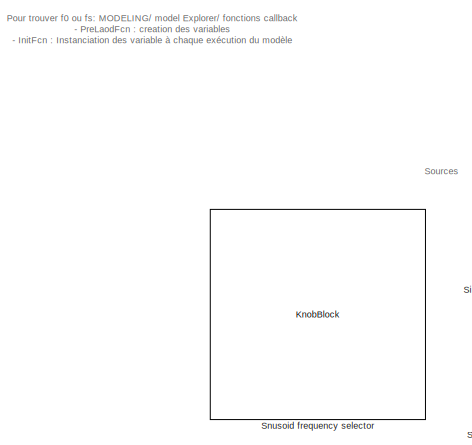
[diagram: root canvas - part 1/2, middle left region]
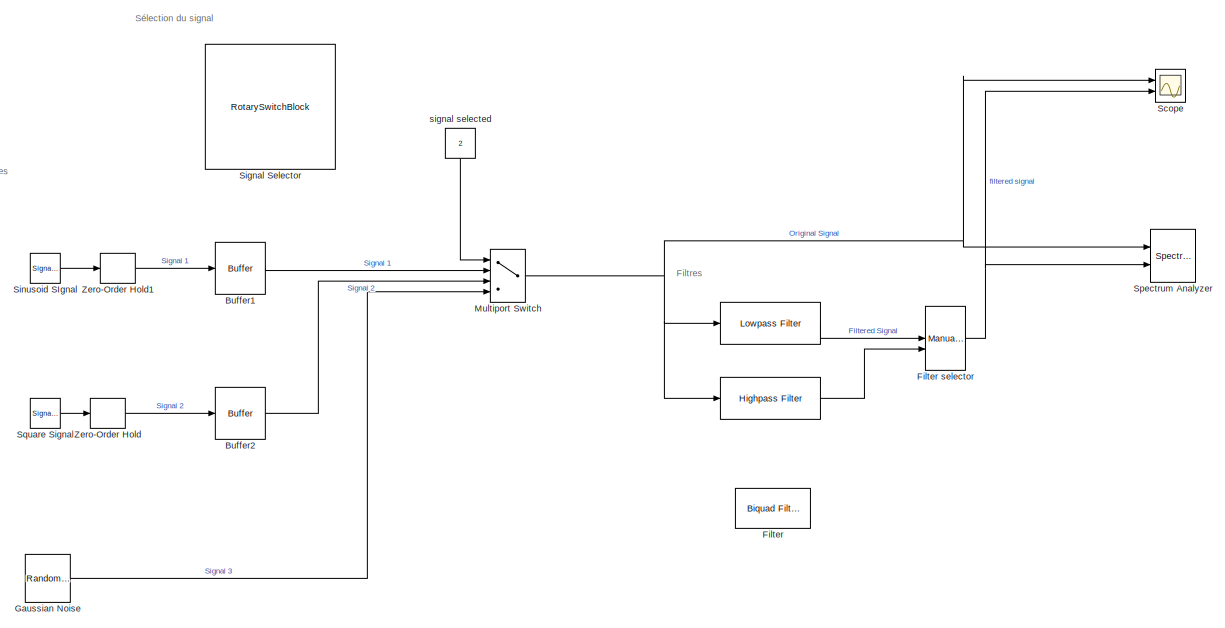
[diagram: root canvas - part 2/2, most of the canvas]
MODEL slx_daaed4553b76
KIND model
CONFIG AbsTol = auto
CONFIG EnableMultiTasking = off
CONFIG FixedStep = auto
CONFIG InitFcn = f0=10\nfs=1e3*f0
CONFIG MaxStep = auto
CONFIG MinStep = auto
CONFIG PreLoadFcn = f0=10\nfs=1e3*f0
CONFIG RelTol = 1e-3
CONFIG SampleTimeConstraint = Unconstrained
CONFIG SolverName = FixedStepAuto
CONFIG StartTime = 0.0
CONFIG StopTime = inf
BLOCK [Reference]    REF=dspfdesign/Lowpass Filter
  Ports = [1, 1]
  SourceBlock = dspfdesign/Lowpass Filter
  SourceProductBaseCode = DS
  SourceType = dsp.LowpassFilter
BLOCK [Reference]     REF=dspfdesign/Highpass Filter
  Ports = [1, 1]
  SourceBlock = dspfdesign/Highpass Filter
  SourceProductBaseCode = DS
  SourceType = dsp.HighpassFilter
BLOCK [Buffer] Buffer1
  N = 256
  OutputFrames = off
BLOCK [Buffer] Buffer2
  N = 256
  OutputFrames = off
BLOCK [Reference] Filter  REF=dsparch4/Biquad Filter
  Ports = [1, 1]
  SourceBlock = dsparch4/Biquad Filter
  SourceProductBaseCode = DS
  SourceType = Biquad Filter
  Tag = BlockMethodSubSystem
  UserDataPersistent = on
BLOCK [ManualSwitch] Filter selector
  CurrentSetting = 0
BLOCK [Reference] Gaussian Noise  REF=dspsrcs4/Random
Source
  Ports = [0, 1]
  SourceBlock = dspsrcs4/Random\nSource
  SourceProductName = DSP System Toolbox
  SourceType = Random Source
  UserDataPersistent = on
BLOCK [MultiPortSwitch] Multiport Switch
  DiagnosticForDefault = None
  InputSameDT = off
  Ports = [4, 1]
  SaturateOnIntegerOverflow = off
BLOCK [Scope] Scope
  Floating = off
  NumInputPorts = 2
  Ports = [2]
  ScopeSpecificationString = Simulink.scopes.TimeScopeBlockCfg('CurrentConfiguration', extmgr.ConfigurationSet(extmgr.Configuration('Core','General UI',true),extmgr.Configuration('Core','Source UI',true),extmgr.Configuration('Sources','WiredSimulink',true),extmgr.Configuration('Visuals','Time Domain',true,'InputProcessing','FrameProcessing','SerializedDisplays',{struct('MinYLimReal','-1.25','MaxYLimReal','1.25','YLabelReal','...<+2417ch>
BLOCK [RotarySwitchBlock] Signal Selector
  LabelPosition = Hide
BLOCK [SignalGenerator] Sinusoid SIgnal
  Frequency = 31.4653205871582
  Ports = [0, 1]
BLOCK [KnobBlock] Snusoid frequency selector
  Description = Signal selector
  ScaleMax = 250
BLOCK [SpectrumAnalyzer] Spectrum Analyzer
  NumInputPorts = 2
  Ports = [2]
  ScopeSpecificationString = spbscopes.SpectrumAnalyzerBlockCfg('CurrentConfiguration', extmgr.ConfigurationSet(extmgr.Configuration('Core','General UI',true),extmgr.Configuration('Core','Source UI',true),extmgr.Configuration('Sources','WiredSimulink',true),extmgr.Configuration('Visuals','Spectrum',true,'AxesProperties',struct('Color',{[0 0 0],[0 0 0]},'XColor',{[0.686274509803922 0.686274509803922 0.686274509803922],[0.68627...<+3121ch>
BLOCK [SignalGenerator] Square Signal
  Frequency = f0
  Ports = [0, 1]
  WaveForm = square
BLOCK [ZeroOrderHold] Zero-Order Hold
  SampleTime = 1/fs
BLOCK [ZeroOrderHold] Zero-Order Hold1
  SampleTime = 1/fs
BLOCK [Constant] signal selected
  NameLocation = left
  SampleTime = -1
  Value = 2
ANNOTATION (root): Sélection du signal
ANNOTATION (root): Filtres
ANNOTATION (root): Sources
ANNOTATION (root): Pour trouver f0 ou fs: MODELING/ model Explorer/ fonctions callback - PreLaodFcn : creation des variables - InitFcn : Instanciation des variable à chaque exécution du modèle
LINE   :1 -> Filter selector:2
LINE  :1 -> Filter selector:1
LINE Buffer1:1 -> Multiport Switch:2
LINE Buffer2:1 -> Multiport Switch:3
NET Filter selector:1 -> Scope:2, Spectrum Analyzer:2
LINE Gaussian Noise:1 -> Multiport Switch:4
NET Multiport Switch:1 ->   :1,  :1, Scope:1, Spectrum Analyzer:1
LINE Sinusoid SIgnal:1 -> Zero-Order Hold1:1
LINE Square Signal:1 -> Zero-Order Hold:1
LINE Zero-Order Hold1:1 -> Buffer1:1
LINE Zero-Order Hold:1 -> Buffer2:1
LINE signal selected:1 -> Multiport Switch:1
note: NET lines group one-source signal fan-out (src -> all destinations, sorted); 1:1 wires keep LINE
